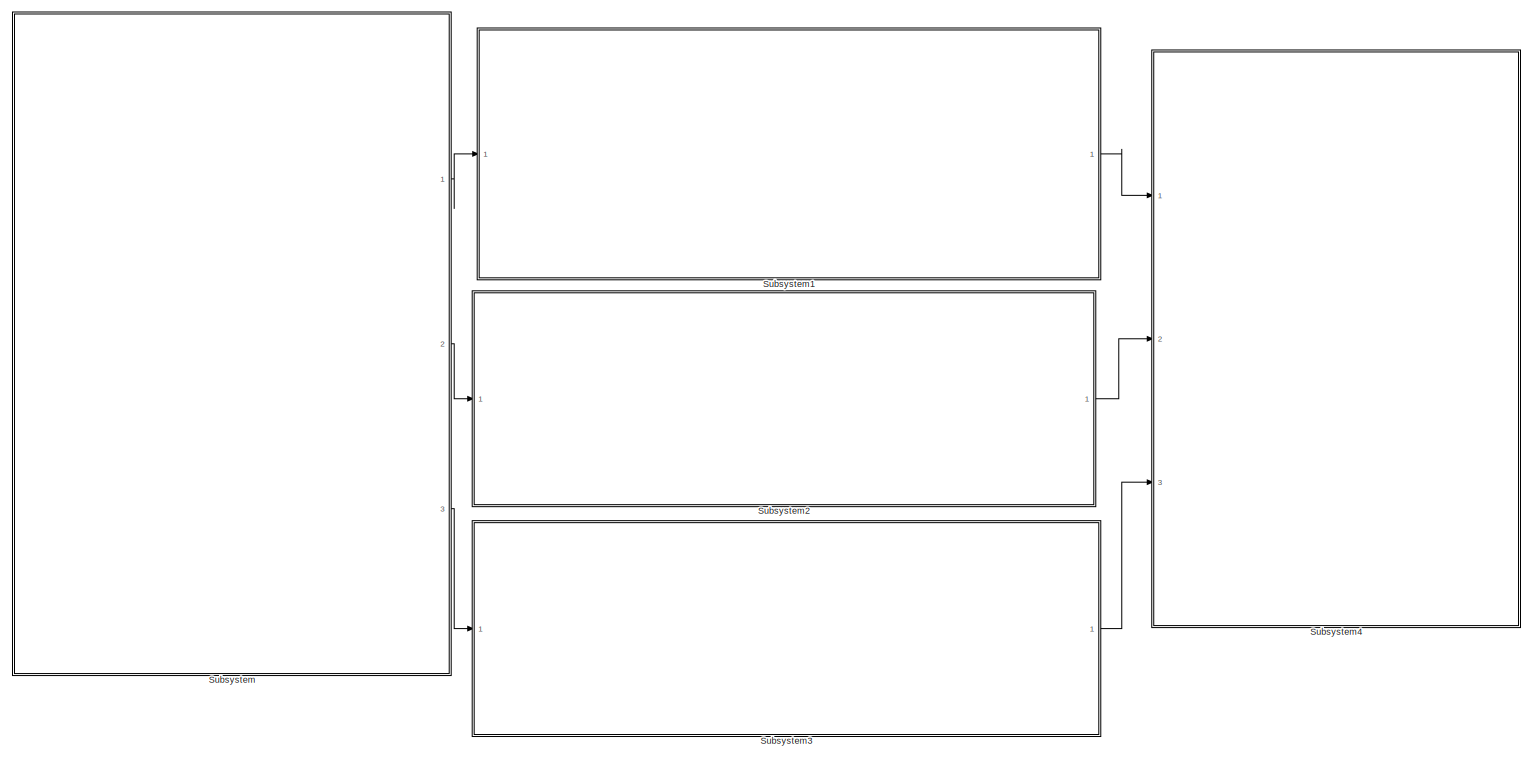
[diagram: root canvas - part 1/1, most of the canvas]
MODEL slx_ad4cd15c602f
KIND model
CONFIG AbsTol = auto
CONFIG EnableMultiTasking = off
CONFIG FixedStep = auto
CONFIG MaxStep = auto
CONFIG MinStep = auto
CONFIG RelTol = 1e-3
CONFIG SampleTimeConstraint = Unconstrained
CONFIG Solver = VariableStepAuto
CONFIG SolverName = VariableStepAuto
CONFIG StartTime = 0.0
CONFIG StopTime = 10.0
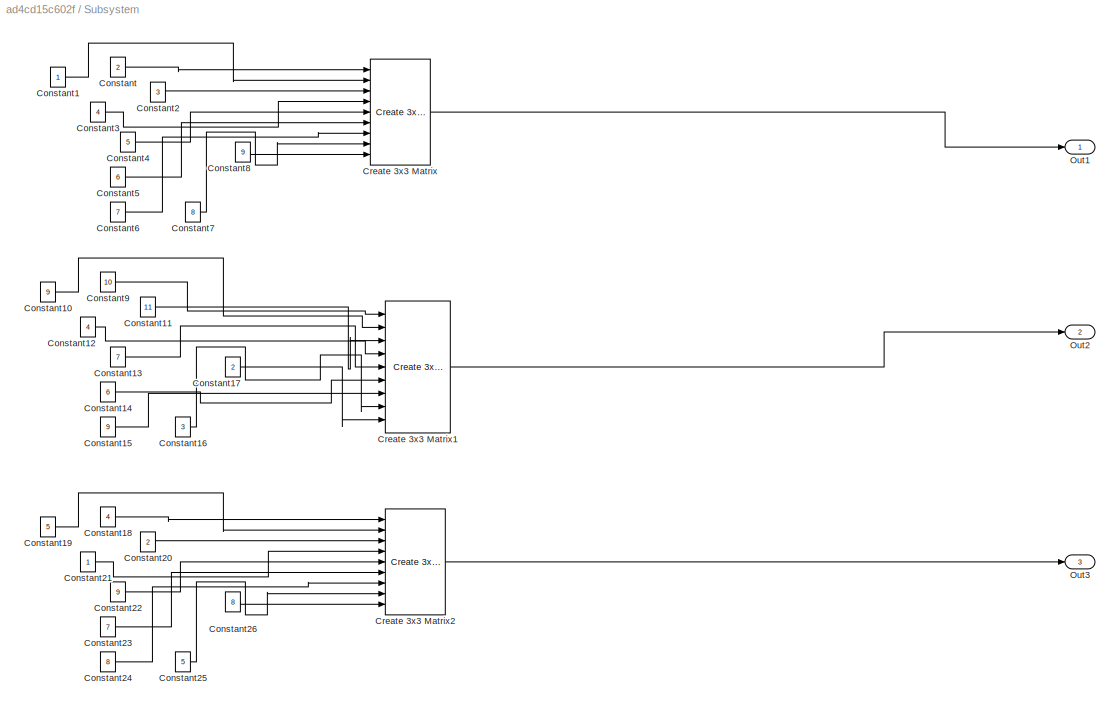
BLOCK [SubSystem] Subsystem
  Ports = [0, 3]
  RequestExecContextInheritance = off
  Variant = off
BLOCK [Constant] Subsystem/Constant
  Value = 2
BLOCK [Constant] Subsystem/Constant1
BLOCK [Constant] Subsystem/Constant10
  Value = 9
BLOCK [Constant] Subsystem/Constant11
  Value = 11
BLOCK [Constant] Subsystem/Constant12
  Value = 4
BLOCK [Constant] Subsystem/Constant13
  Value = 7
BLOCK [Constant] Subsystem/Constant14
  Value = 6
BLOCK [Constant] Subsystem/Constant15
  Value = 9
BLOCK [Constant] Subsystem/Constant16
  Value = 3
BLOCK [Constant] Subsystem/Constant17
  Value = 2
BLOCK [Constant] Subsystem/Constant18
  Value = 4
BLOCK [Constant] Subsystem/Constant19
  Value = 5
BLOCK [Constant] Subsystem/Constant2
  Value = 3
BLOCK [Constant] Subsystem/Constant20
  Value = 2
BLOCK [Constant] Subsystem/Constant21
BLOCK [Constant] Subsystem/Constant22
  Value = 9
BLOCK [Constant] Subsystem/Constant23
  Value = 7
BLOCK [Constant] Subsystem/Constant24
  Value = 8
BLOCK [Constant] Subsystem/Constant25
  Value = 5
BLOCK [Constant] Subsystem/Constant26
  Value = 8
BLOCK [Constant] Subsystem/Constant3
  Value = 4
BLOCK [Constant] Subsystem/Constant4
  Value = 5
BLOCK [Constant] Subsystem/Constant5
  Value = 6
BLOCK [Constant] Subsystem/Constant6
  Value = 7
BLOCK [Constant] Subsystem/Constant7
  Value = 8
BLOCK [Constant] Subsystem/Constant8
  Value = 9
BLOCK [Constant] Subsystem/Constant9
  Value = 10
BLOCK [Reference] Subsystem/Create 3x3 Matrix  REF=sharedutil/Create 3x3 Matrix
  Ports = [9, 1]
  SourceBlock = sharedutil/Create 3x3 Matrix
  SourceType = Create 3x3 Matrix
BLOCK [Reference] Subsystem/Create 3x3 Matrix1  REF=sharedutil/Create 3x3 Matrix
  Ports = [9, 1]
  SourceBlock = sharedutil/Create 3x3 Matrix
  SourceType = Create 3x3 Matrix
BLOCK [Reference] Subsystem/Create 3x3 Matrix2  REF=sharedutil/Create 3x3 Matrix
  Ports = [9, 1]
  SourceBlock = sharedutil/Create 3x3 Matrix
  SourceType = Create 3x3 Matrix
BLOCK [Outport] Subsystem/Out1
  IconDisplay = Port number
BLOCK [Outport] Subsystem/Out2
  IconDisplay = Port number
  Port = 2
BLOCK [Outport] Subsystem/Out3
  IconDisplay = Port number
  Port = 3
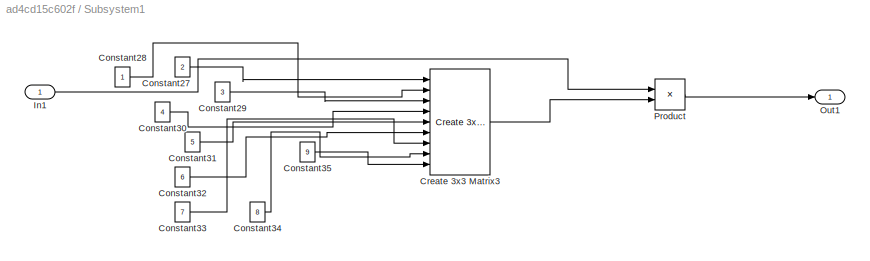
BLOCK [SubSystem] Subsystem1
  Ports = [1, 1]
  RequestExecContextInheritance = off
  Variant = off
BLOCK [Constant] Subsystem1/Constant27
  Value = 2
BLOCK [Constant] Subsystem1/Constant28
BLOCK [Constant] Subsystem1/Constant29
  Value = 3
BLOCK [Constant] Subsystem1/Constant30
  Value = 4
BLOCK [Constant] Subsystem1/Constant31
  Value = 5
BLOCK [Constant] Subsystem1/Constant32
  Value = 6
BLOCK [Constant] Subsystem1/Constant33
  Value = 7
BLOCK [Constant] Subsystem1/Constant34
  Value = 8
BLOCK [Constant] Subsystem1/Constant35
  Value = 9
BLOCK [Reference] Subsystem1/Create 3x3 Matrix3  REF=sharedutil/Create 3x3 Matrix
  Ports = [9, 1]
  SourceBlock = sharedutil/Create 3x3 Matrix
  SourceType = Create 3x3 Matrix
BLOCK [Inport] Subsystem1/In1
  IconDisplay = Port number
BLOCK [Outport] Subsystem1/Out1
  IconDisplay = Port number
BLOCK [Product] Subsystem1/Product
  InputSameDT = off
  Multiplication = Matrix(*)
  OutDataTypeStr = Inherit: Inherit via internal rule
  Ports = [2, 1]
  RndMeth = Floor
  SaturateOnIntegerOverflow = off
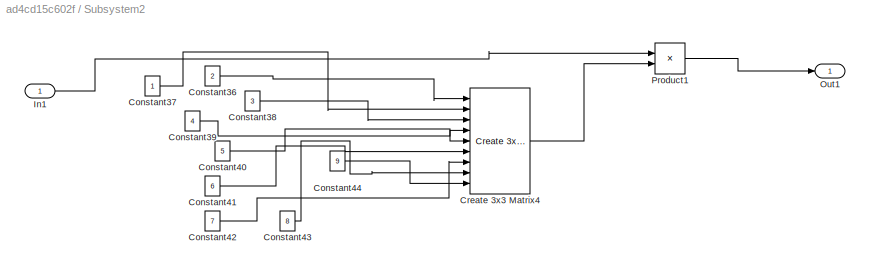
BLOCK [SubSystem] Subsystem2
  Ports = [1, 1]
  RequestExecContextInheritance = off
  Variant = off
BLOCK [Constant] Subsystem2/Constant36
  Value = 2
BLOCK [Constant] Subsystem2/Constant37
BLOCK [Constant] Subsystem2/Constant38
  Value = 3
BLOCK [Constant] Subsystem2/Constant39
  Value = 4
BLOCK [Constant] Subsystem2/Constant40
  Value = 5
BLOCK [Constant] Subsystem2/Constant41
  Value = 6
BLOCK [Constant] Subsystem2/Constant42
  Value = 7
BLOCK [Constant] Subsystem2/Constant43
  Value = 8
BLOCK [Constant] Subsystem2/Constant44
  Value = 9
BLOCK [Reference] Subsystem2/Create 3x3 Matrix4  REF=sharedutil/Create 3x3 Matrix
  Ports = [9, 1]
  SourceBlock = sharedutil/Create 3x3 Matrix
  SourceType = Create 3x3 Matrix
BLOCK [Inport] Subsystem2/In1
  IconDisplay = Port number
BLOCK [Outport] Subsystem2/Out1
  IconDisplay = Port number
BLOCK [Product] Subsystem2/Product1
  InputSameDT = off
  Multiplication = Matrix(*)
  OutDataTypeStr = Inherit: Inherit via internal rule
  Ports = [2, 1]
  RndMeth = Floor
  SaturateOnIntegerOverflow = off
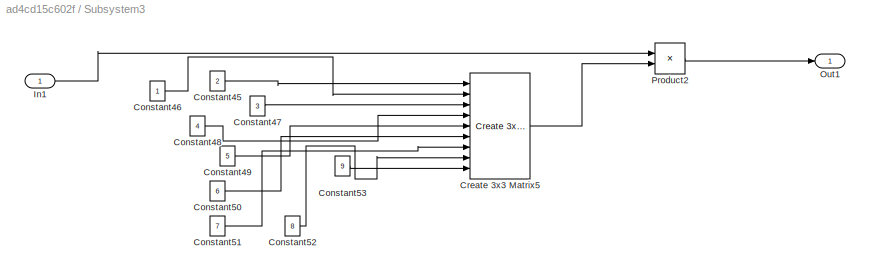
BLOCK [SubSystem] Subsystem3
  Ports = [1, 1]
  RequestExecContextInheritance = off
  Variant = off
BLOCK [Constant] Subsystem3/Constant45
  Value = 2
BLOCK [Constant] Subsystem3/Constant46
BLOCK [Constant] Subsystem3/Constant47
  Value = 3
BLOCK [Constant] Subsystem3/Constant48
  Value = 4
BLOCK [Constant] Subsystem3/Constant49
  Value = 5
BLOCK [Constant] Subsystem3/Constant50
  Value = 6
BLOCK [Constant] Subsystem3/Constant51
  Value = 7
BLOCK [Constant] Subsystem3/Constant52
  Value = 8
BLOCK [Constant] Subsystem3/Constant53
  Value = 9
BLOCK [Reference] Subsystem3/Create 3x3 Matrix5  REF=sharedutil/Create 3x3 Matrix
  Ports = [9, 1]
  SourceBlock = sharedutil/Create 3x3 Matrix
  SourceType = Create 3x3 Matrix
BLOCK [Inport] Subsystem3/In1
  IconDisplay = Port number
BLOCK [Outport] Subsystem3/Out1
  IconDisplay = Port number
BLOCK [Product] Subsystem3/Product2
  InputSameDT = off
  Multiplication = Matrix(*)
  OutDataTypeStr = Inherit: Inherit via internal rule
  Ports = [2, 1]
  RndMeth = Floor
  SaturateOnIntegerOverflow = off
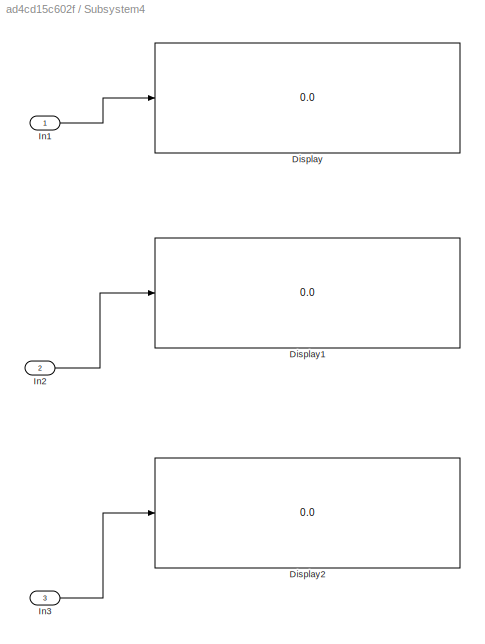
BLOCK [SubSystem] Subsystem4
  Ports = [3]
  RequestExecContextInheritance = off
  Variant = off
BLOCK [Display] Subsystem4/Display
  Decimation = 1
  Ports = [1]
BLOCK [Display] Subsystem4/Display1
  Decimation = 1
  Ports = [1]
BLOCK [Display] Subsystem4/Display2
  Decimation = 1
  Ports = [1]
BLOCK [Inport] Subsystem4/In1
  IconDisplay = Port number
BLOCK [Inport] Subsystem4/In2
  IconDisplay = Port number
  Port = 2
BLOCK [Inport] Subsystem4/In3
  IconDisplay = Port number
  Port = 3
LINE Subsystem/Constant10:1 -> Subsystem/Create 3x3 Matrix1:2
LINE Subsystem/Constant11:1 -> Subsystem/Create 3x3 Matrix1:3
LINE Subsystem/Constant12:1 -> Subsystem/Create 3x3 Matrix1:4
LINE Subsystem/Constant13:1 -> Subsystem/Create 3x3 Matrix1:5
LINE Subsystem/Constant14:1 -> Subsystem/Create 3x3 Matrix1:6
LINE Subsystem/Constant15:1 -> Subsystem/Create 3x3 Matrix1:7
LINE Subsystem/Constant16:1 -> Subsystem/Create 3x3 Matrix1:8
LINE Subsystem/Constant17:1 -> Subsystem/Create 3x3 Matrix1:9
LINE Subsystem/Constant18:1 -> Subsystem/Create 3x3 Matrix2:1
LINE Subsystem/Constant19:1 -> Subsystem/Create 3x3 Matrix2:2
LINE Subsystem/Constant1:1 -> Subsystem/Create 3x3 Matrix:2
LINE Subsystem/Constant20:1 -> Subsystem/Create 3x3 Matrix2:3
LINE Subsystem/Constant21:1 -> Subsystem/Create 3x3 Matrix2:4
LINE Subsystem/Constant22:1 -> Subsystem/Create 3x3 Matrix2:5
LINE Subsystem/Constant23:1 -> Subsystem/Create 3x3 Matrix2:6
LINE Subsystem/Constant24:1 -> Subsystem/Create 3x3 Matrix2:7
LINE Subsystem/Constant25:1 -> Subsystem/Create 3x3 Matrix2:8
LINE Subsystem/Constant26:1 -> Subsystem/Create 3x3 Matrix2:9
LINE Subsystem/Constant2:1 -> Subsystem/Create 3x3 Matrix:3
LINE Subsystem/Constant3:1 -> Subsystem/Create 3x3 Matrix:4
LINE Subsystem/Constant4:1 -> Subsystem/Create 3x3 Matrix:5
LINE Subsystem/Constant5:1 -> Subsystem/Create 3x3 Matrix:6
LINE Subsystem/Constant6:1 -> Subsystem/Create 3x3 Matrix:7
LINE Subsystem/Constant7:1 -> Subsystem/Create 3x3 Matrix:8
LINE Subsystem/Constant8:1 -> Subsystem/Create 3x3 Matrix:9
LINE Subsystem/Constant9:1 -> Subsystem/Create 3x3 Matrix1:1
LINE Subsystem/Constant:1 -> Subsystem/Create 3x3 Matrix:1
LINE Subsystem/Create 3x3 Matrix1:1 -> Subsystem/Out2:1
LINE Subsystem/Create 3x3 Matrix2:1 -> Subsystem/Out3:1
LINE Subsystem/Create 3x3 Matrix:1 -> Subsystem/Out1:1
LINE Subsystem1/Constant27:1 -> Subsystem1/Create 3x3 Matrix3:1
LINE Subsystem1/Constant28:1 -> Subsystem1/Create 3x3 Matrix3:2
LINE Subsystem1/Constant29:1 -> Subsystem1/Create 3x3 Matrix3:3
LINE Subsystem1/Constant30:1 -> Subsystem1/Create 3x3 Matrix3:4
LINE Subsystem1/Constant31:1 -> Subsystem1/Create 3x3 Matrix3:5
LINE Subsystem1/Constant32:1 -> Subsystem1/Create 3x3 Matrix3:6
LINE Subsystem1/Constant33:1 -> Subsystem1/Create 3x3 Matrix3:7
LINE Subsystem1/Constant34:1 -> Subsystem1/Create 3x3 Matrix3:8
LINE Subsystem1/Constant35:1 -> Subsystem1/Create 3x3 Matrix3:9
LINE Subsystem1/Create 3x3 Matrix3:1 -> Subsystem1/Product:2
LINE Subsystem1/In1:1 -> Subsystem1/Product:1
LINE Subsystem1/Product:1 -> Subsystem1/Out1:1
LINE Subsystem1:1 -> Subsystem4:1
LINE Subsystem2/Constant36:1 -> Subsystem2/Create 3x3 Matrix4:1
LINE Subsystem2/Constant37:1 -> Subsystem2/Create 3x3 Matrix4:2
LINE Subsystem2/Constant38:1 -> Subsystem2/Create 3x3 Matrix4:3
LINE Subsystem2/Constant39:1 -> Subsystem2/Create 3x3 Matrix4:4
LINE Subsystem2/Constant40:1 -> Subsystem2/Create 3x3 Matrix4:5
LINE Subsystem2/Constant41:1 -> Subsystem2/Create 3x3 Matrix4:6
LINE Subsystem2/Constant42:1 -> Subsystem2/Create 3x3 Matrix4:7
LINE Subsystem2/Constant43:1 -> Subsystem2/Create 3x3 Matrix4:8
LINE Subsystem2/Constant44:1 -> Subsystem2/Create 3x3 Matrix4:9
LINE Subsystem2/Create 3x3 Matrix4:1 -> Subsystem2/Product1:2
LINE Subsystem2/In1:1 -> Subsystem2/Product1:1
LINE Subsystem2/Product1:1 -> Subsystem2/Out1:1
LINE Subsystem2:1 -> Subsystem4:2
LINE Subsystem3/Constant45:1 -> Subsystem3/Create 3x3 Matrix5:1
LINE Subsystem3/Constant46:1 -> Subsystem3/Create 3x3 Matrix5:2
LINE Subsystem3/Constant47:1 -> Subsystem3/Create 3x3 Matrix5:3
LINE Subsystem3/Constant48:1 -> Subsystem3/Create 3x3 Matrix5:4
LINE Subsystem3/Constant49:1 -> Subsystem3/Create 3x3 Matrix5:5
LINE Subsystem3/Constant50:1 -> Subsystem3/Create 3x3 Matrix5:6
LINE Subsystem3/Constant51:1 -> Subsystem3/Create 3x3 Matrix5:7
LINE Subsystem3/Constant52:1 -> Subsystem3/Create 3x3 Matrix5:8
LINE Subsystem3/Constant53:1 -> Subsystem3/Create 3x3 Matrix5:9
LINE Subsystem3/Create 3x3 Matrix5:1 -> Subsystem3/Product2:2
LINE Subsystem3/In1:1 -> Subsystem3/Product2:1
LINE Subsystem3/Product2:1 -> Subsystem3/Out1:1
LINE Subsystem3:1 -> Subsystem4:3
LINE Subsystem4/In1:1 -> Subsystem4/Display:1
LINE Subsystem4/In2:1 -> Subsystem4/Display1:1
LINE Subsystem4/In3:1 -> Subsystem4/Display2:1
LINE Subsystem:1 -> Subsystem1:1
LINE Subsystem:2 -> Subsystem2:1
LINE Subsystem:3 -> Subsystem3:1
